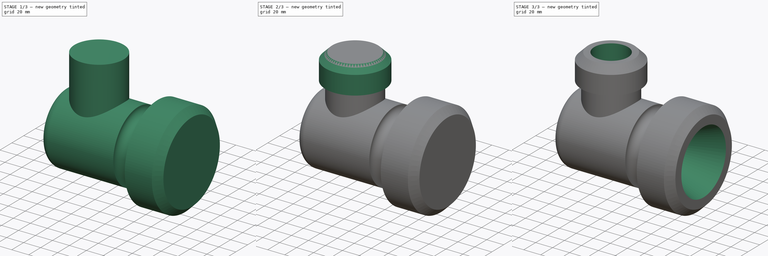
[diagram: build sequence overview — one tinted view per stage of 3, left to right]
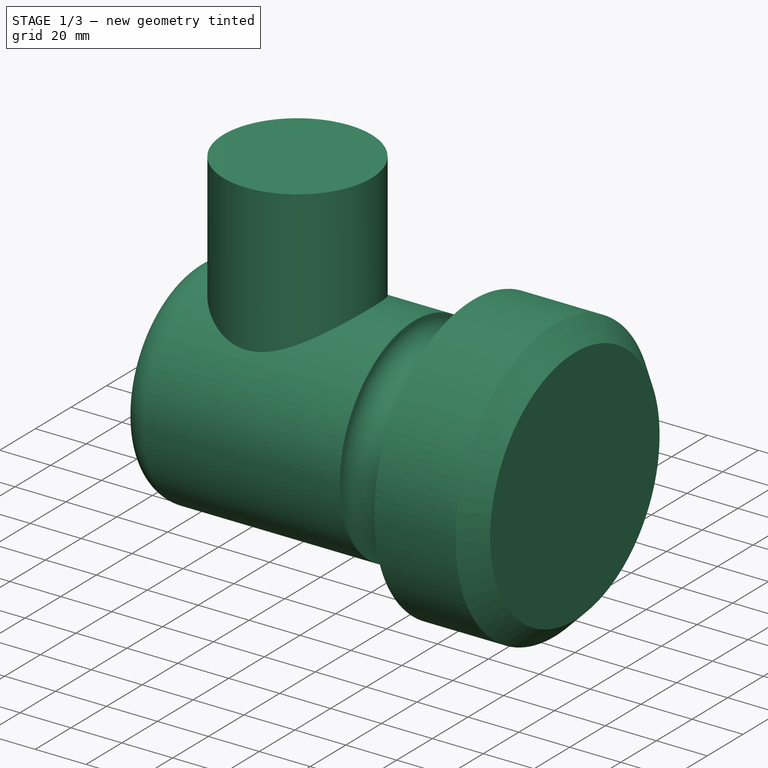
[diagram: stage 1 of 3 — iso view after this stage's code; geometry added in this stage tinted green]
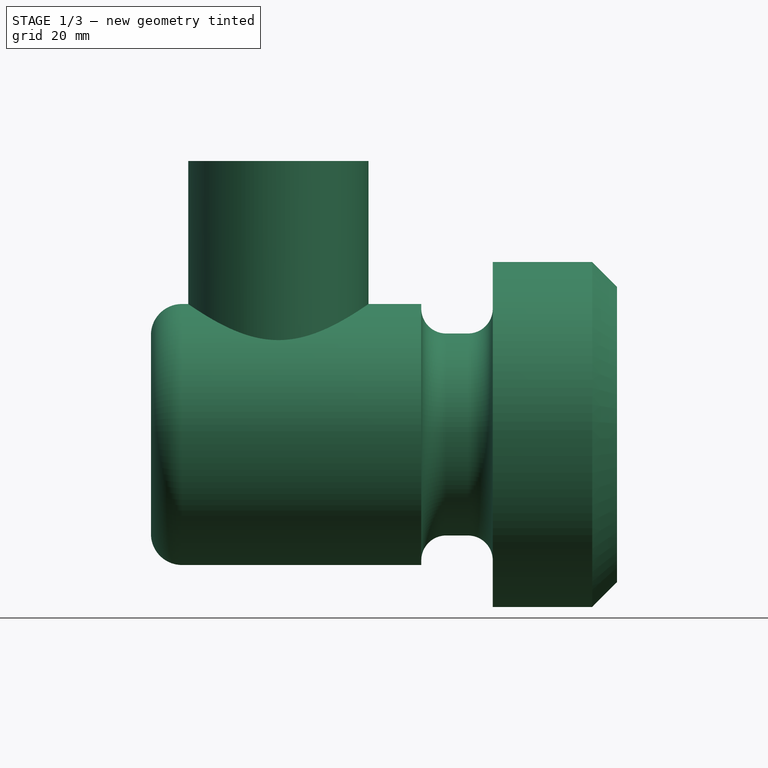
[diagram: stage 1 of 3 — front view after this stage's code; geometry added in this stage tinted green]
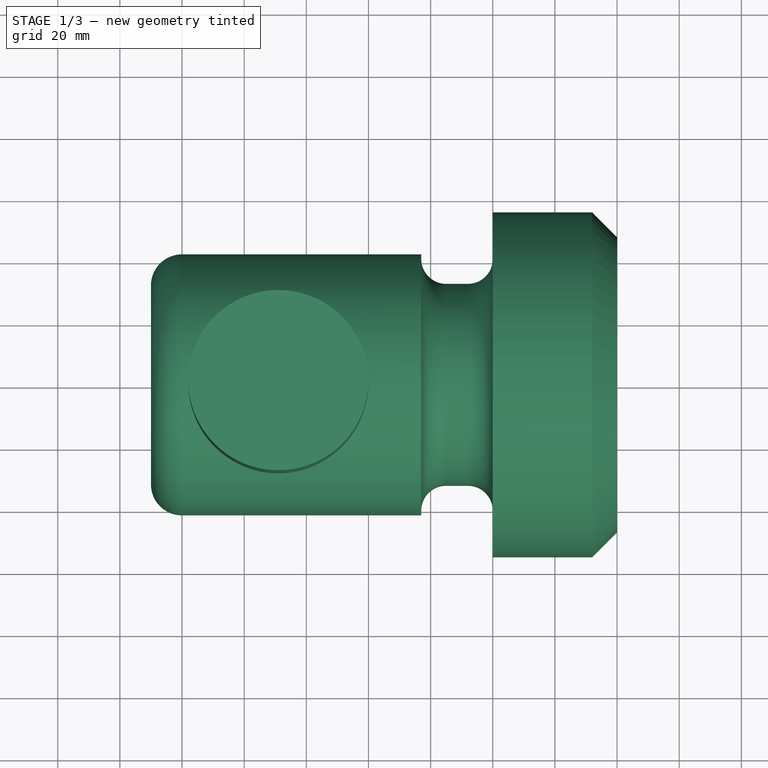
[diagram: stage 1 of 3 — top view after this stage's code; geometry added in this stage tinted green]
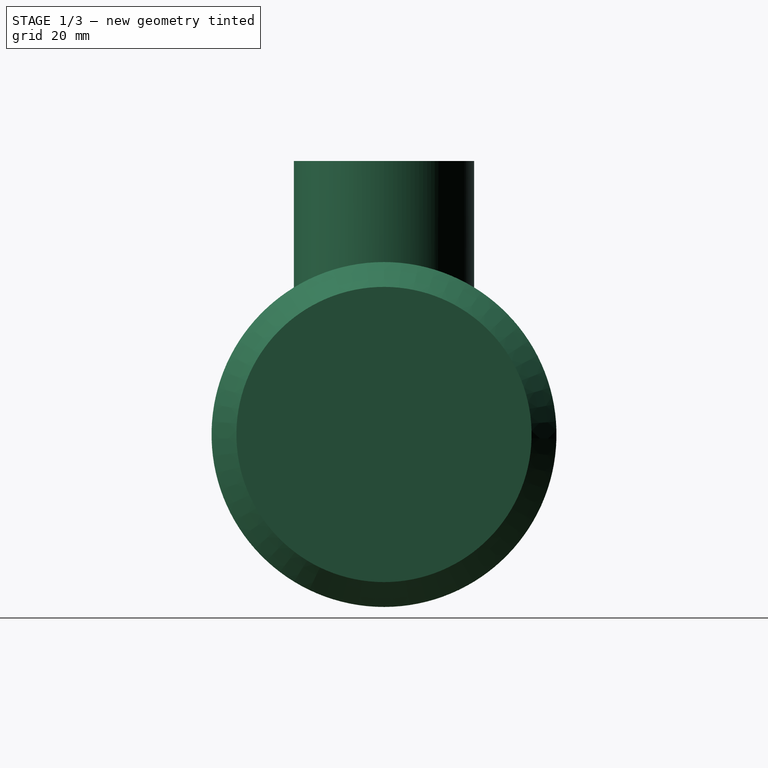
[diagram: stage 1 of 3 — right view after this stage's code; geometry added in this stage tinted green]
FCSTD DOCUMENT  (FreeCAD 1.1R42180 (Git))
Label: 24WC-12-Tube_Plug
License: Creative Commons Attribution-NonCommercial-ShareAlike 4.0
LicenseURL: https://creativecommons.org/licenses/by-nc-sa/4.0/
objects: Sketcher::SketchObject×6, PartDesign::Pad×2, App::Point×1, PartDesign::Revolution×1, PartDesign::Chamfer×1, PartDesign::Groove×1, PartDesign::SubtractivePipe×1, PartDesign::Body×1, App::TextDocument×1
note: 31 computed .brp shape members not serialized (recipe doc carries the construction recipe); baked Part::Feature solids carry a one-line shape summary decoded from their .brp

FEATURE [App::Point] Origin001  label="Origine"
  Role = Origin
FEATURE [Sketcher::SketchObject] Sketch
  ArcFitTolerance = 1e-06
  AttachmentSupport = -> [Origin]
  ExternalTypes = [0]
  FullyConstrained = true
  MakeInternals = false
  MapMode = 5
  Placement = pos=(0,0,0) rot=(1,0,0;1.5708rad)
  expr: Constraints[26] = 65 / 2
  expr: Constraints[27] = 84 / 2
  expr: Constraints[29] = 111 / 2
  sketch-geometry (12):
    g0: LineSegment StartX=0 StartY=0 StartZ=0 EndX=0 EndY=47.5 EndZ=0
    g1: LineSegment StartX=0 StartY=47.5 StartZ=0 EndX=-8 EndY=55.5 EndZ=0
    g2: LineSegment StartX=-8 StartY=55.5 StartZ=0 EndX=-40 EndY=55.5 EndZ=0
    g3: LineSegment StartX=-40 StartY=55.5 StartZ=0 EndX=-40 EndY=40.5 EndZ=0
    g4: ArcOfCircle CenterX=-48 CenterY=40.5 CenterZ=0 NormalX=0 NormalY=0 NormalZ=1 AngleXU=0 Radius=8 StartAngle=4.71239 EndAngle=6.28319
    g5: LineSegment StartX=-48 StartY=32.5 StartZ=0 EndX=-55 EndY=32.5 EndZ=0
    g6: ArcOfCircle CenterX=-55 CenterY=40.5 CenterZ=0 NormalX=0 NormalY=0 NormalZ=1 AngleXU=0 Radius=8 StartAngle=3.14159 EndAngle=4.71239
    g7: LineSegment StartX=-63 StartY=40.5 StartZ=0 EndX=-63 EndY=42 EndZ=0
    g8: LineSegment StartX=-63 StartY=42 StartZ=0 EndX=-140 EndY=42 EndZ=0
    g9: ArcOfCircle CenterX=-140 CenterY=32 CenterZ=0 NormalX=0 NormalY=0 NormalZ=1 AngleXU=0 Radius=10 StartAngle=1.5708 EndAngle=3.14159
    g10: LineSegment StartX=-150 StartY=32 StartZ=0 EndX=-150 EndY=0 EndZ=0
    g11: LineSegment StartX=-150 StartY=0 StartZ=0 EndX=0 EndY=0 EndZ=0
  constraints (32):
    c: Coincident(g-1,g0)
    c: PointOnObject(g0,g-2)
    c: Coincident(g0,g1)
    c: Coincident(g1,g2)
    c: Horizontal(g2)
    c: Coincident(g2,g3)
    c: Vertical(g3)
    c: Tangent(g3,g4) = 1.5708
    c: Tangent(g4,g5) = 1.5708
    c: Tangent(g5,g6) = 1.5708
    c: Tangent(g6,g7) = 1.5708
    c: Coincident(g7,g8)
    c: Horizontal(g8)
    c: Tangent(g8,g9) = -1.5708
    c: Tangent(g9,g10) = -1.5708
    c: Coincident(g10,g11)
    c: Coincident(g11,g0)
    c: Horizontal(g11)
    c: Vertical(g10)
    c: Distance(g1,g-2) = 8
    c: DistanceX(g11,g11) = 150
    c: Distance(g2,g-2) = 40
    c: Horizontal(g5)
    c: Vertical(g7)
    c: Radius(g6) = 8
    c: Equal(g6,g4)
    c: Distance(g5,g11) = 32.5
    c: Distance(g8,g11) = 42
    c: Angle(g-2,g1) = 0.785398
    c: Distance(g1,g-1) = 55.5
    c: Radius(g9) = 10
    c: DistanceX(g6,g2) = 23
FEATURE [PartDesign::Revolution] Revolution
  Angle = 360
  Angle2 = 60
  Axis = (1,0,0)
  Base = (0,0,0)
  Profile = -> Sketch
  ReferenceAxis = -> X_Axis
  Refine = true
  Suppressed = false
  Type = 0
FEATURE [Sketcher::SketchObject] Sketch001
  ArcFitTolerance = 1e-06
  AttachmentSupport = -> [Origin]
  ExternalTypes = [0]
  FullyConstrained = true
  MakeInternals = false
  MapMode = 5
  sketch-geometry (1):
    g0: Circle CenterX=-109 CenterY=0 CenterZ=0 NormalX=0 NormalY=0 NormalZ=1 AngleXU=0 Radius=29
  constraints (3):
    c: Diameter(g0) = 58
    c: PointOnObject(g0,g-1)
    c: Distance(g0,g-2) = 109
FEATURE [PartDesign::Pad] Pad
  BaseFeature = -> Revolution
  Direction = (0,0,1)
  Length = 88
  Length2 = 10
  Profile = -> Sketch001
  ReferenceAxis = -> Sketch001 [N_Axis]
  Refine = true
  Suppressed = false
  Type = 0
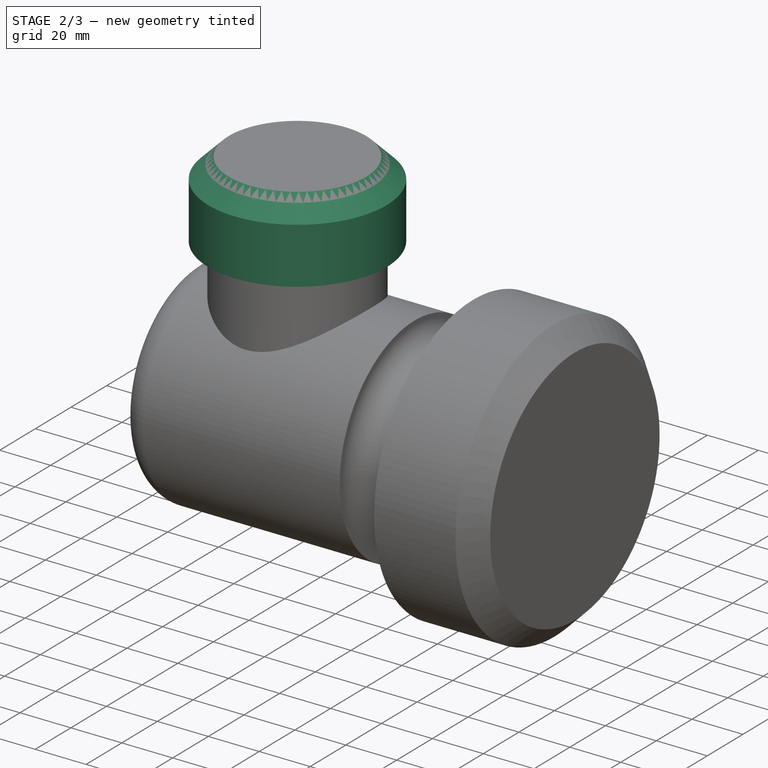
[diagram: stage 2 of 3 — iso view after this stage's code; geometry added in this stage tinted green]
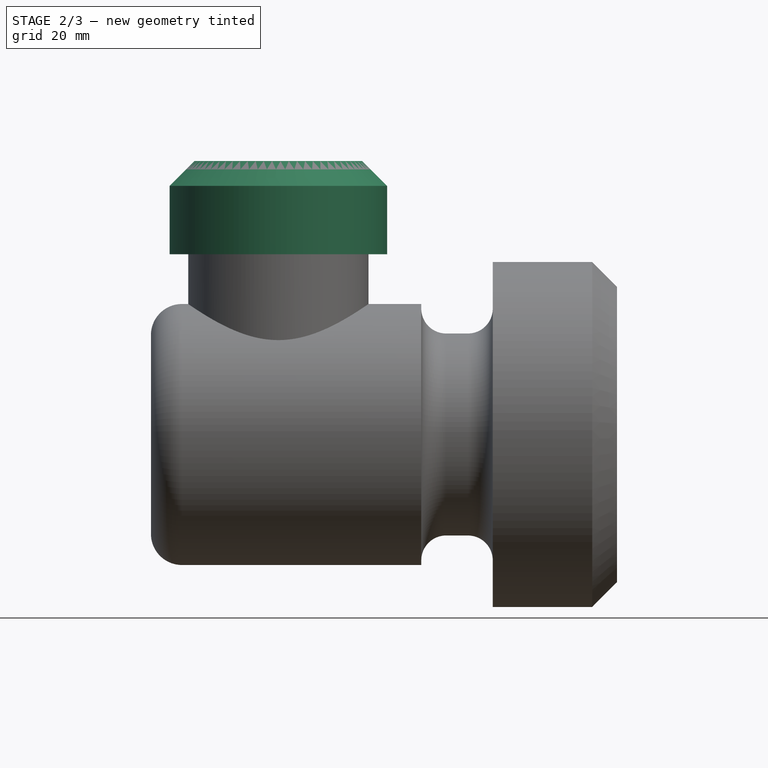
[diagram: stage 2 of 3 — front view after this stage's code; geometry added in this stage tinted green]
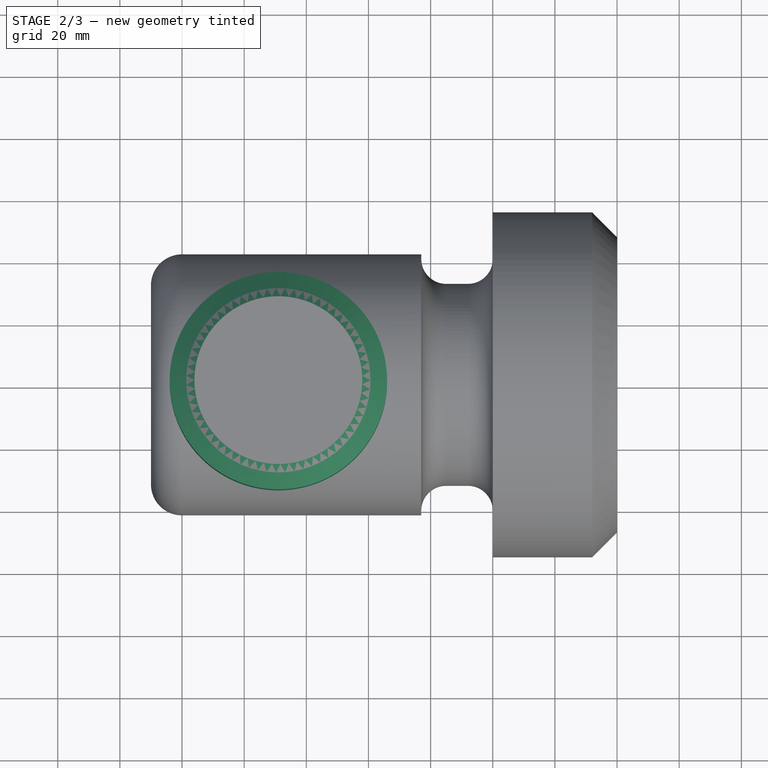
[diagram: stage 2 of 3 — top view after this stage's code; geometry added in this stage tinted green]
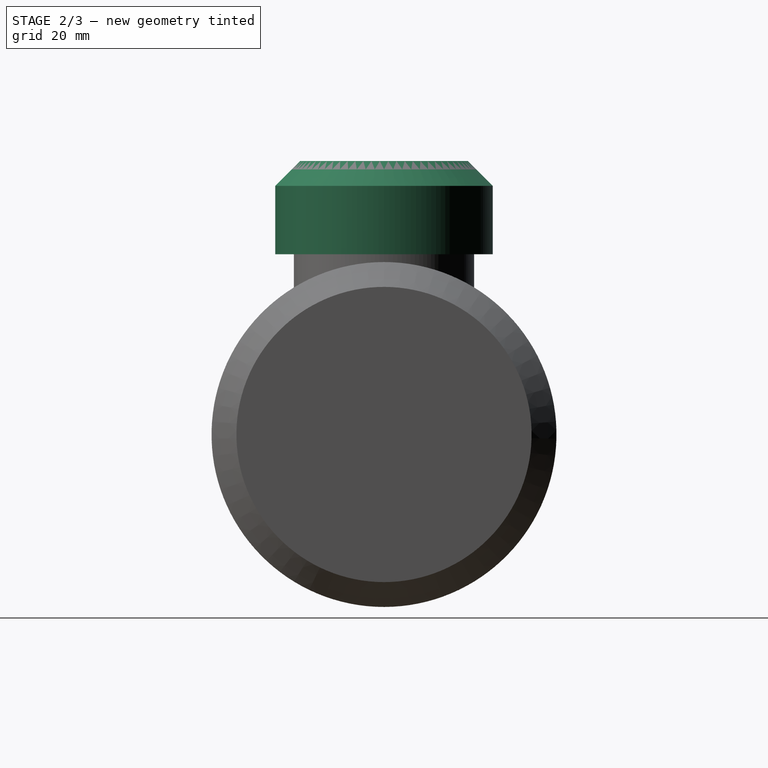
[diagram: stage 2 of 3 — right view after this stage's code; geometry added in this stage tinted green]
FEATURE [Sketcher::SketchObject] Sketch002
  ArcFitTolerance = 1e-06
  AttachmentSupport = -> [Pad]
  ExternalGeometry = -> [Pad]
  ExternalTypes = [0]
  FullyConstrained = true
  MakeInternals = false
  MapMode = 5
  Placement = pos=(0,0,88) rot=(0,0,1;0rad)
  sketch-geometry (1):
    g0: Circle CenterX=-109 CenterY=0 CenterZ=0 NormalX=0 NormalY=0 NormalZ=1 AngleXU=0 Radius=35
  constraints (2):
    c: Diameter(g0) = 70
    c: Coincident(g0,g-3)
FEATURE [PartDesign::Pad] Pad001
  BaseFeature = -> Pad
  Direction = (0,0,1)
  Length = 30
  Length2 = 10
  Profile = -> Sketch002
  ReferenceAxis = -> Sketch002 [N_Axis]
  Refine = true
  Reversed = true
  Suppressed = false
  Type = 0
FEATURE [PartDesign::Chamfer] Chamfer
  Angle = 45
  Base = -> Pad001 [Edge25]
  BaseFeature = -> Pad001
  ChamferType = 0
  FlipDirection = false
  Refine = true
  Size = 8
  Size2 = 1
  SupportTransform = false
  Suppressed = false
  UseAllEdges = false
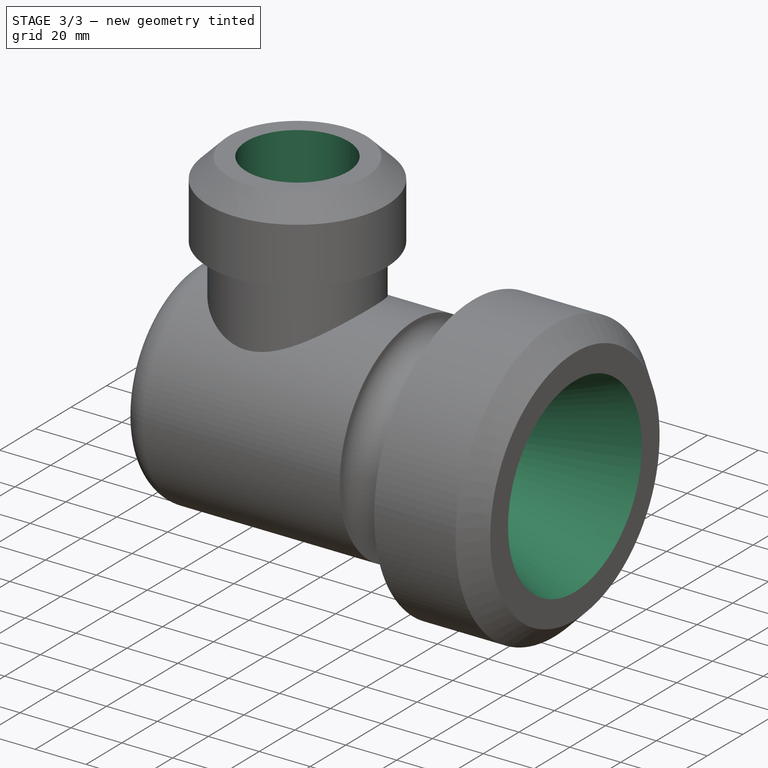
[diagram: stage 3 of 3 — iso view after this stage's code; geometry added in this stage tinted green]
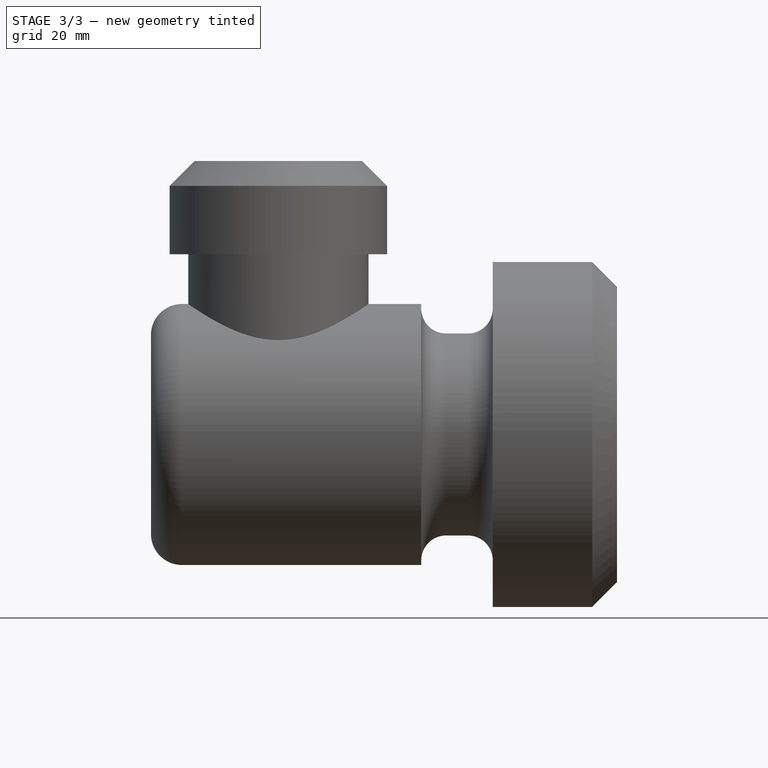
[diagram: stage 3 of 3 — front view after this stage's code; geometry added in this stage tinted green]
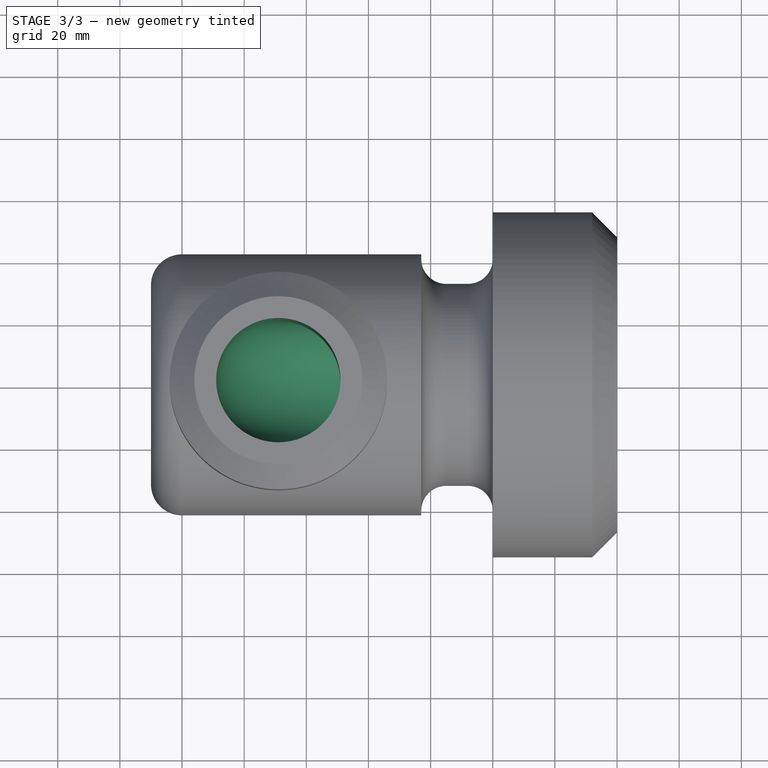
[diagram: stage 3 of 3 — top view after this stage's code; geometry added in this stage tinted green]
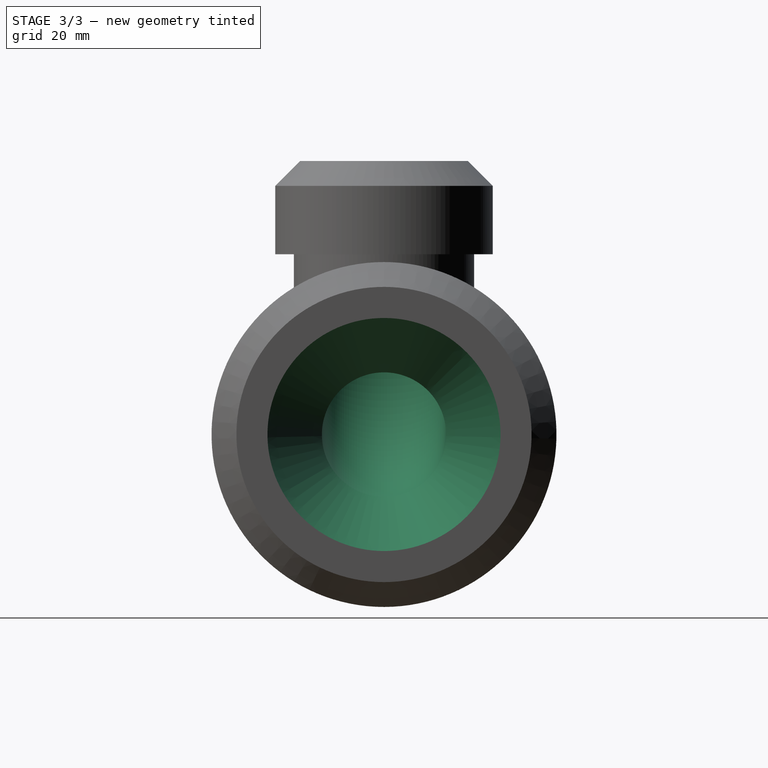
[diagram: stage 3 of 3 — right view after this stage's code; geometry added in this stage tinted green]
FEATURE [Sketcher::SketchObject] Sketch005
  ArcFitTolerance = 1e-06
  AttachmentSupport = -> [Origin]
  ExternalTypes = [0]
  FullyConstrained = true
  MakeInternals = false
  MapMode = 5
  Placement = pos=(0,0,0) rot=(1,0,0;1.5708rad)
  expr: Constraints[10] = 44 / 2
  expr: Constraints[8] = 75 / 2
  expr: Constraints[9] = 40 / 2
  sketch-geometry (4):
    g0: LineSegment StartX=0 StartY=0 StartZ=0 EndX=0 EndY=37.5 EndZ=0
    g1: LineSegment StartX=0 StartY=37.5 StartZ=0 EndX=-43.314 EndY=20 EndZ=0
    g2: LineSegment StartX=-43.314 StartY=20 StartZ=0 EndX=-43.314 EndY=0 EndZ=0
    g3: LineSegment StartX=-43.314 StartY=0 StartZ=0 EndX=0 EndY=0 EndZ=0
  constraints (11):
    c: Coincident(g-1,g0)
    c: PointOnObject(g0,g-2)
    c: Coincident(g0,g1)
    c: Coincident(g1,g2)
    c: Vertical(g2)
    c: Coincident(g2,g3)
    c: Coincident(g3,g0)
    c: Horizontal(g3)
    c: DistanceY(g0,g0) = 37.5
    c: DistanceY(g2,g2) = 20
    c: Angle(g-1,g1) = 0.383972
FEATURE [PartDesign::Groove] Groove
  Angle = 360
  Angle2 = 60
  Axis = (1,0,0)
  Base = (0,0,0)
  BaseFeature = -> Chamfer
  Profile = -> Sketch005
  ReferenceAxis = -> X_Axis
  Refine = true
  Reversed = true
  Suppressed = false
  Type = 0
FEATURE [Sketcher::SketchObject] Sketch004  label="Path"
  ArcFitTolerance = 1e-06
  AttachmentSupport = -> [Origin]
  ExternalGeometry = -> [Groove]
  ExternalTypes = [0]
  FullyConstrained = true
  MakeInternals = false
  MapMode = 5
  Placement = pos=(0,0,0) rot=(1,0,0;1.5708rad)
  sketch-geometry (3):
    g0: LineSegment StartX=-109 StartY=88 StartZ=0 EndX=-109 EndY=30 EndZ=0
    g1: ArcOfCircle CenterX=-79 CenterY=30 CenterZ=0 NormalX=0 NormalY=0 NormalZ=1 AngleXU=0 Radius=30 StartAngle=3.14159 EndAngle=4.71239
    g2: LineSegment StartX=-79.0001 StartY=1.4e-15 StartZ=0 EndX=-43.314 EndY=1.4e-15 EndZ=0
  constraints (8):
    c: Vertical(g0)
    c: Symmetric(g-3,g-3,g0)
    c: Tangent(g1,g0) = -1.5708
    c: Radius(g1) = 30
    c: Coincident(g2,g1)
    c: Symmetric(g-4,g-4,g2)
    c: Horizontal(g2)
    c: Tangent(g-1,g1)
FEATURE [Sketcher::SketchObject] Sketch006
  ArcFitTolerance = 1e-06
  AttachmentSupport = -> [Chamfer]
  ExternalGeometry = -> [Chamfer]
  ExternalTypes = [0]
  FullyConstrained = true
  MakeInternals = false
  MapMode = 5
  Placement = pos=(0,0,88) rot=(0,0,1;0rad)
  sketch-geometry (1):
    g0: Circle CenterX=-109 CenterY=0 CenterZ=0 NormalX=0 NormalY=0 NormalZ=1 AngleXU=0 Radius=20
  constraints (2):
    c: Diameter(g0) = 40
    c: Coincident(g0,g-3)
FEATURE [PartDesign::SubtractivePipe] SubtractivePipe
  AuxiliaryCurvilinear = true
  AuxiliarySpineTangent = false
  BaseFeature = -> Groove
  Binormal = (0,0,0)
  Mode = 0
  Profile = -> Sketch006
  Refine = true
  Spine = -> Sketch004
  SpineTangent = false
  Suppressed = false
  Transformation = 0
  Transition = 0
FEATURE [PartDesign::Body] Body  label="Corps"
  AllowCompound = true
  Group = -> [Sketch,Revolution,Sketch001,Pad,Sketch002,Pad001,Chamfer,Sketch004,Sketch005,Groove,Sketch006,SubtractivePipe]
  Origin = -> Origin
  Tip = -> SubtractivePipe
FEATURE [App::TextDocument] Text_document  label="README"
  Text = https://www.youtube.com/watch?v=JrDNdeHMO9Q\n\n1020 kg/m3\n\n816,9 g GOOD!
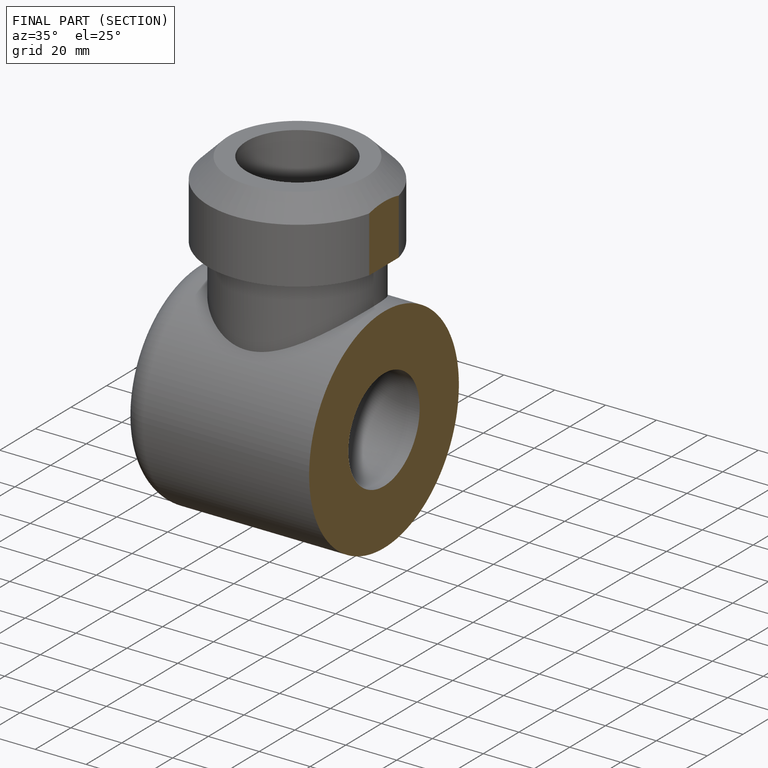
[diagram: finished part — half-section view (interior)]
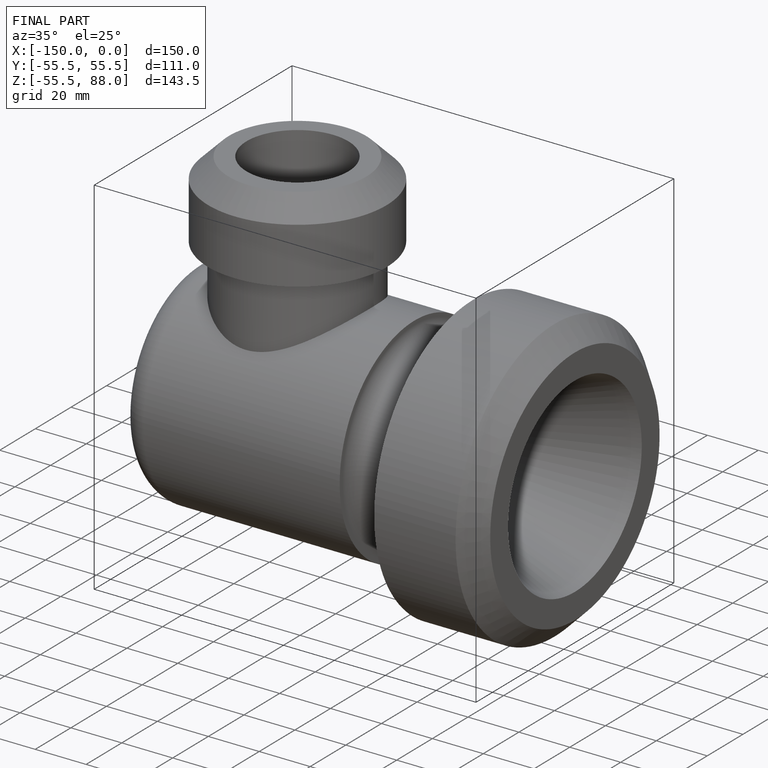
[diagram: finished part — iso view with bounding-box wireframe]
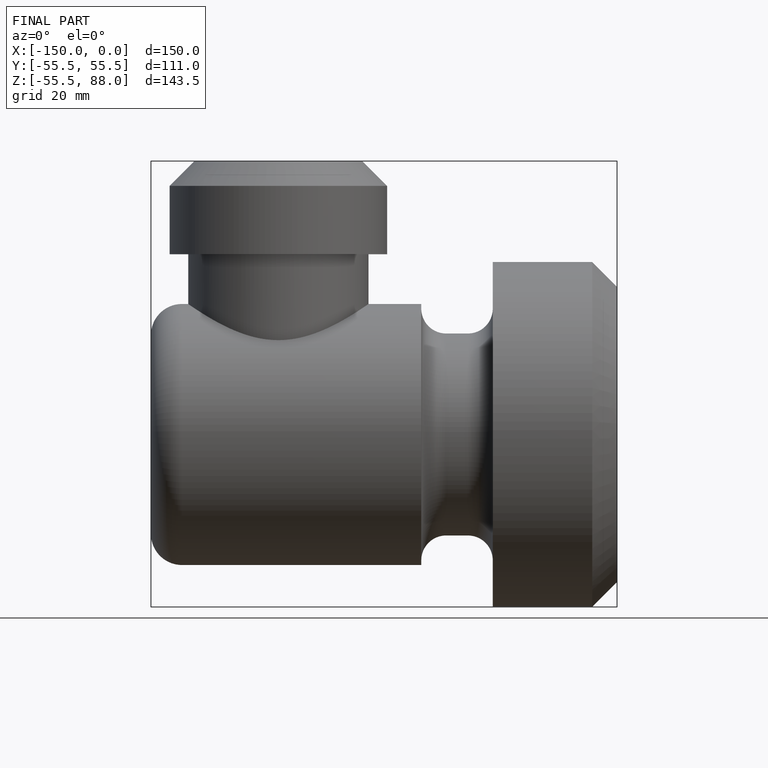
[diagram: finished part — front view with bounding-box wireframe]
